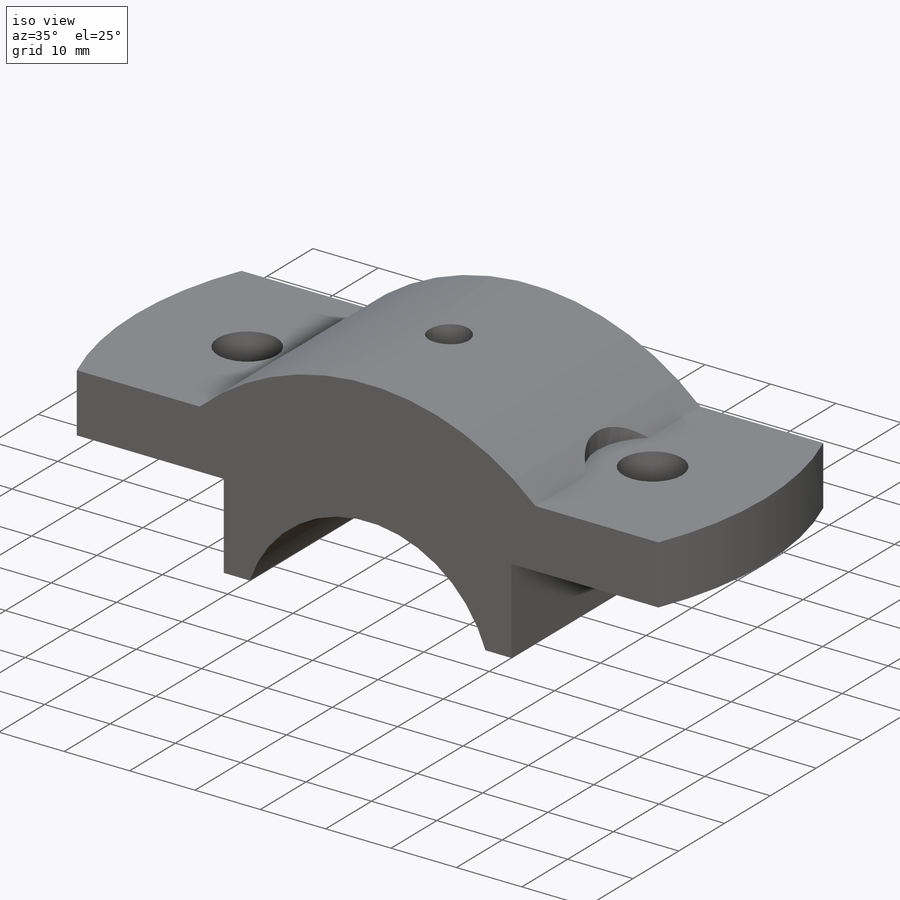
[diagram: iso view]
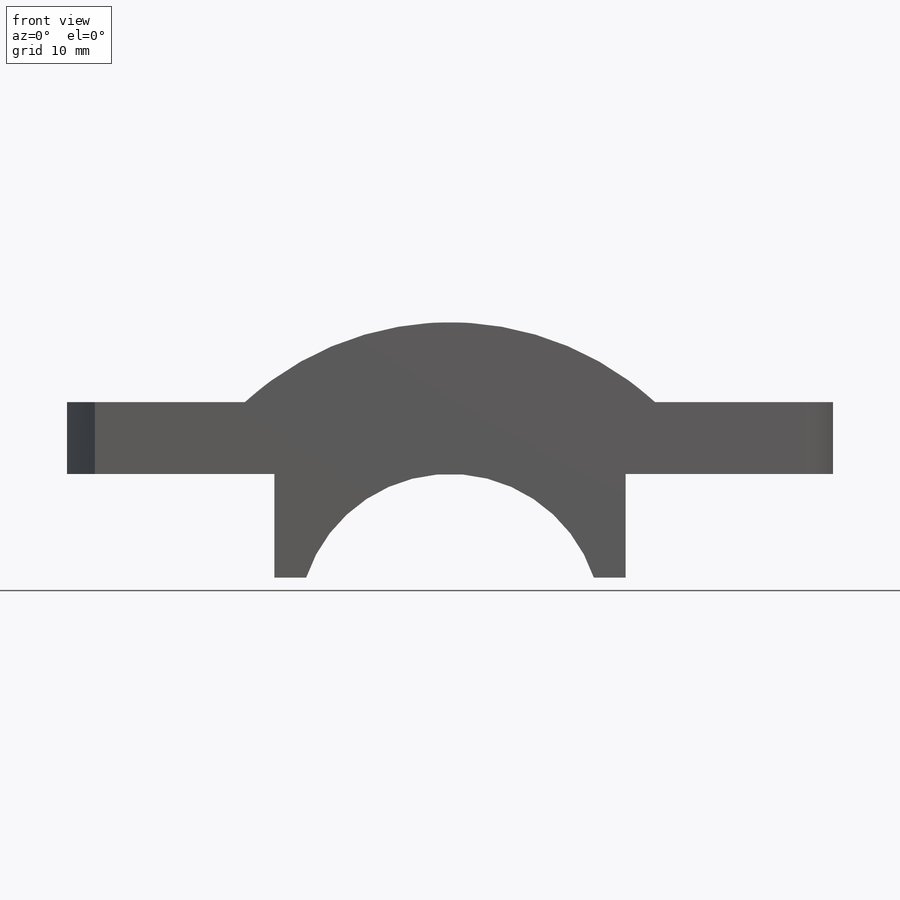
[diagram: front view]
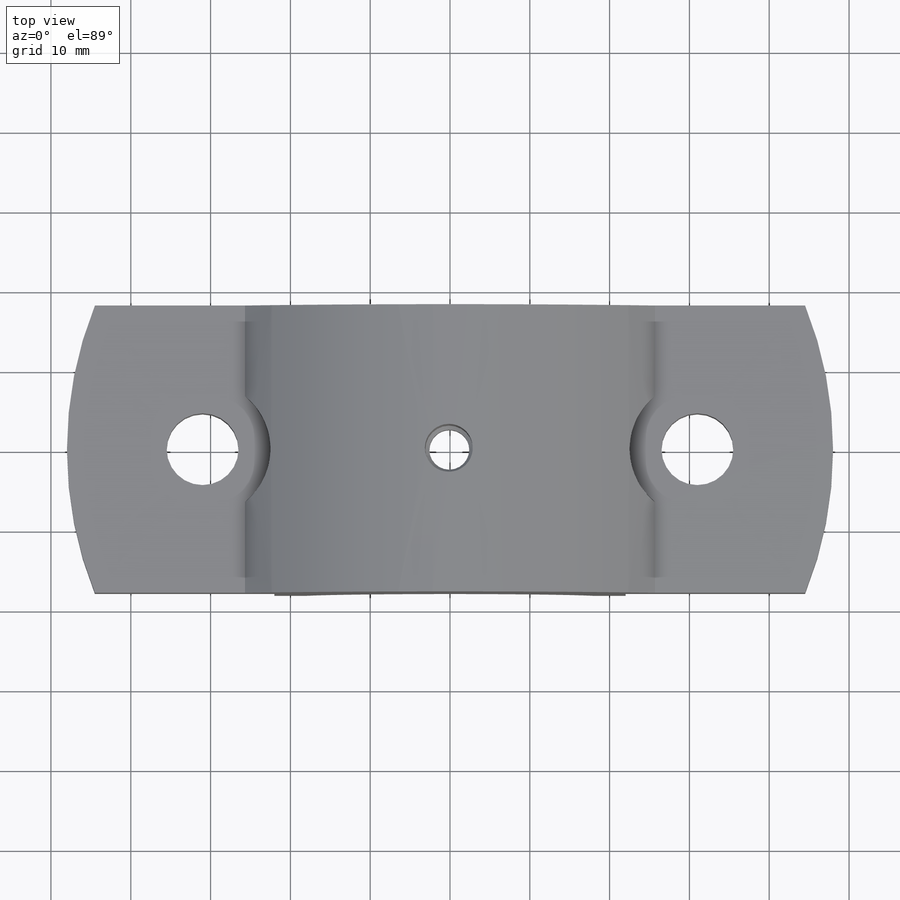
[diagram: top view]
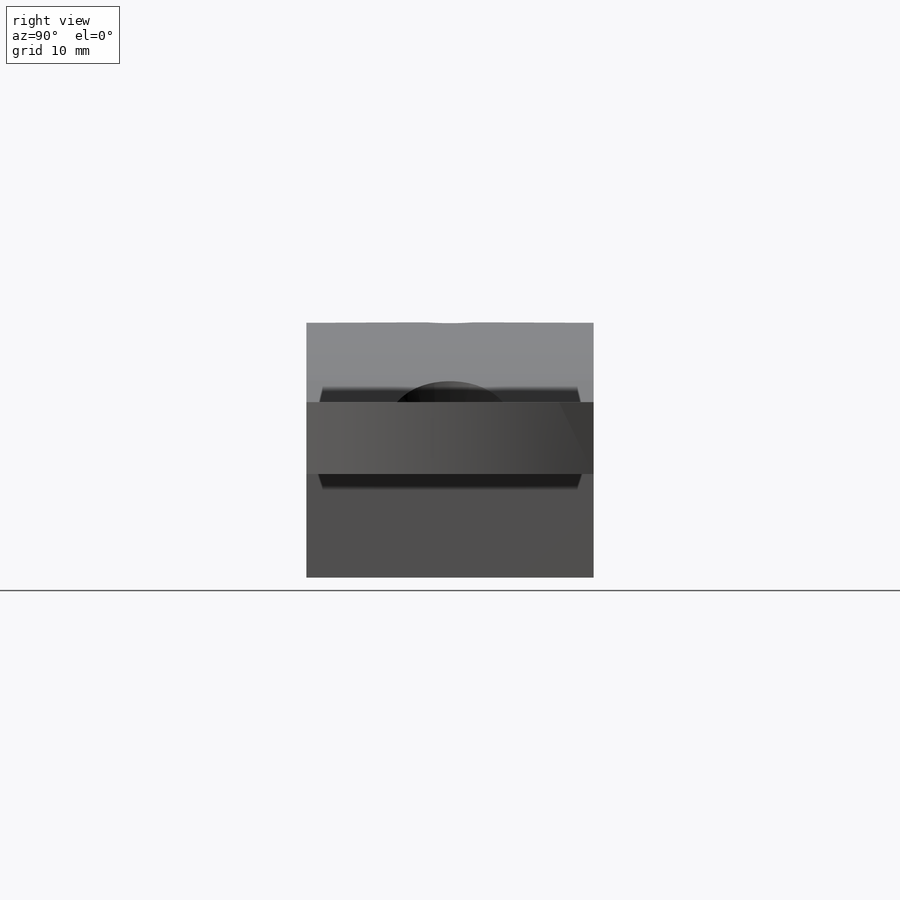
[diagram: right view]
SOLIDWORKS PART (.sldprt)
format: sldprt  version: not decoded by parser v0  size: 293,376 bytes
history: native  units: mm
features: sketch x9, mirror x3, hole x3, cut_extrude x2, material x1, extrude x1 (+12 scaffold rows collapsed)
feature tree (31):
  scaffold x12  (default folders/planes/origin — collapsed)
  material  "Material <not specified>"
  sketch  "Sketch1"  dims[c1.D1=19.0mm c1.D6=38.0mm c1.D5=38.0mm c1.D2=22.0mm c1.D3=6.0mm c1.D4=19.0mm c2.D5=9.0mm c2.D6=9.0mm c2.D7=50.0mm]
  extrude  "Boss-Extrude1"  Depth=36mm
  mirror  "Mirror1"
  hole  "Ø6.0mm Dowel Hole2"  Diameter=9mm Depth=22mm
  sketch  "Sketch22"  dims[D1=31.0mm]
  sketch  "Sketch23"  dims[hole-wizard template sketch: 60 standard entries collapsed; hole parameters kept: c18.Thru Hole Depth=22.0mm]
  sketch  "Sketch24"  dims[D1=~9.739878mm]
  cut_extrude  "Cut-Extrude7"  Depth=19mm
  mirror  "Mirror5"
  sketch  "Sketch25"  dims[D1=48.0mm]
  cut_extrude  "Cut-Extrude8"  [1 undecoded]
  mirror  "Mirror7"
  hole  "CBORE for M6 Hex Head Machine Screw1"  Diameter=5mm Depth=32.184921mm
  sketch  "3DSketch5"  dims[D1=0.0mm]
  sketch  "Sketch28"  dims[hole-wizard template sketch: 42 standard entries collapsed; hole parameters kept: c12.Thru Hole Depth=~32.184921mm c12.C'Bore Dia.=6.0mm c12.C'Bore Depth=13.0mm c12.Mid C'Sink Dia.=6.65mm c12.D6=~5.388154mm c12.Mid C'Sink Angle=90.0deg]
  hole  "Ø6.0mm Dowel Hole3"  Diameter=9mm Depth=22mm
  sketch  "Sketch30"  dims[D1=31.0mm]
  sketch  "Sketch31"  dims[hole-wizard template sketch: 60 standard entries collapsed; hole parameters kept: c18.Thru Hole Depth=22.0mm]
decode coverage: 14 of 18 modeling features carry decoded parameters
note: ~ marks probable driven/reference dimensions
note: 1 parameter value undecoded
note: suppression state not decoded; provenance and decode notes live in map.json
